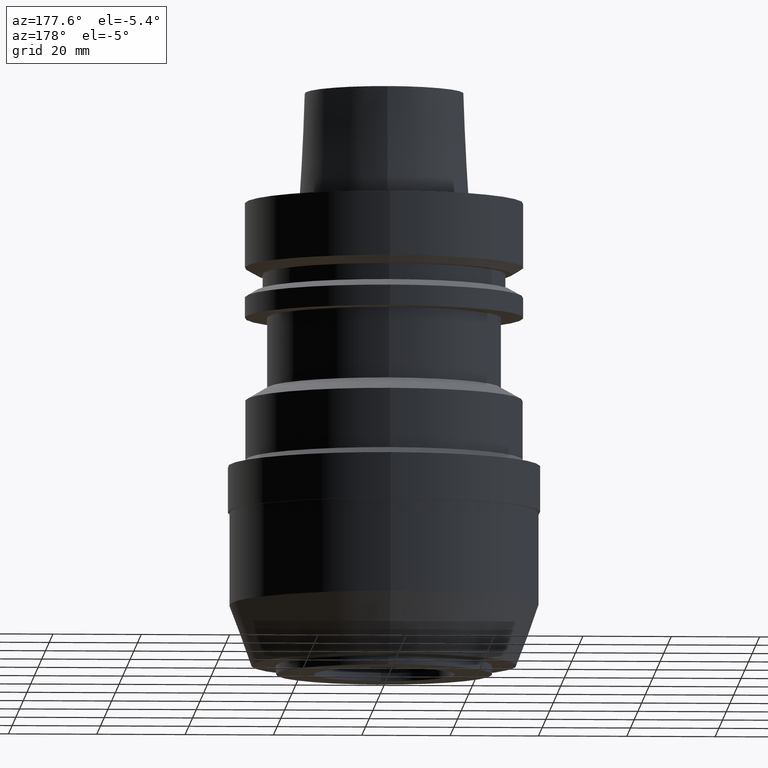
[diagram: clean part render]
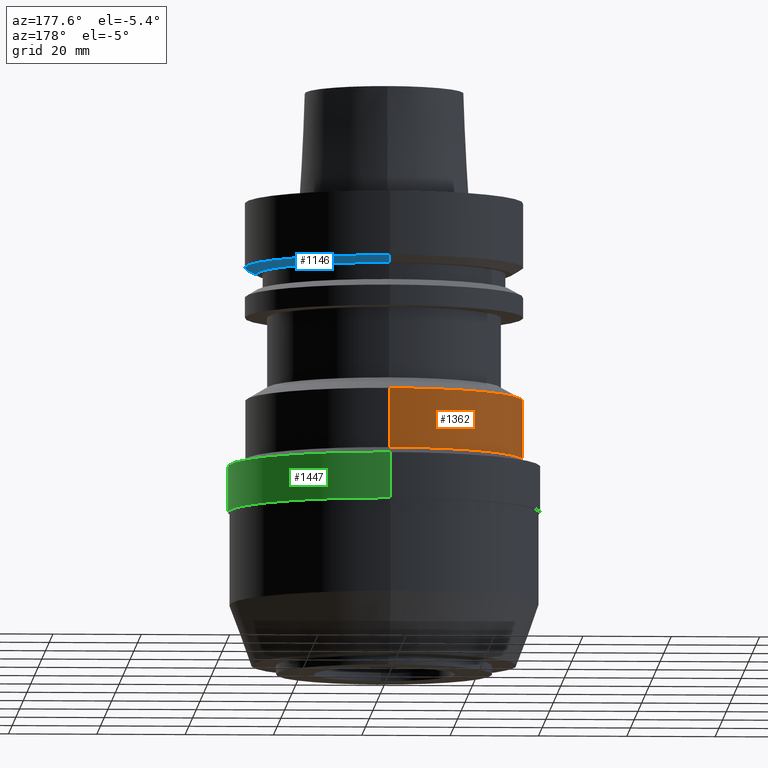
[diagram: same view with three faces highlighted in distinct colors, each labeled with its STEP entity id]
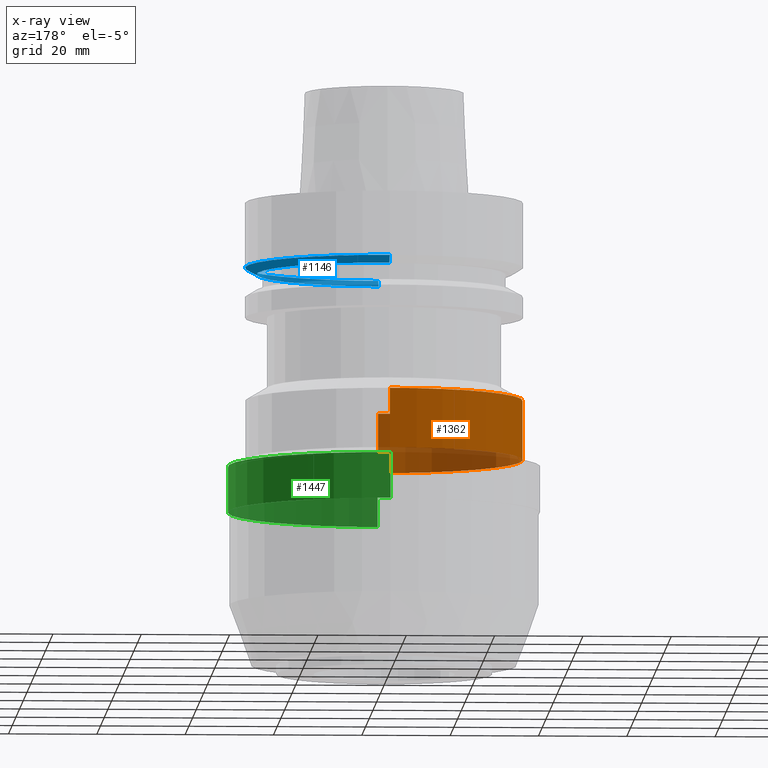
[diagram: x-ray of the same camera — body ghosted, the three highlighted faces saturated]
A machine part, auxiliary view with three faces highlighted in distinct colors.
The next image is the same camera in x-ray (body ghosted, the three faces saturated) — at least one of them is partly hidden behind the body in this view.
Their STEP definitions:

[orange] entity #1362 — the highlighted cylindrical surface (partial cylindrical patch) has radius 31.4 mm, axis along (0, 0, 1).
#346=CARTESIAN_POINT('',(0.E0,0.E0,-4.482901631903E1));
#347=DIRECTION('',(0.E0,0.E0,-1.E0));
#348=DIRECTION('',(0.E0,-1.E0,0.E0));
#349=AXIS2_PLACEMENT_3D('',#346,#347,#348);
#354=DIRECTION('',(0.E0,8.755863486256E-14,-1.E0));
#355=VECTOR('',#354,1.347098368097E1);
#356=CARTESIAN_POINT('',(0.E0,-3.14E1,-4.482901631903E1));
#357=LINE('',#356,#355);
#361=DIRECTION('',(0.E0,-8.755863486256E-14,-1.E0));
#362=VECTOR('',#361,1.347098368097E1);
#363=CARTESIAN_POINT('',(0.E0,3.14E1,-4.482901631903E1));
#364=LINE('',#363,#362);
#383=CARTESIAN_POINT('',(0.E0,0.E0,-5.83E1));
#384=DIRECTION('',(0.E0,0.E0,1.E0));
#385=DIRECTION('',(0.E0,1.E0,0.E0));
#386=AXIS2_PLACEMENT_3D('',#383,#384,#385);
#954=CARTESIAN_POINT('',(0.E0,3.14E1,-4.482901631903E1));
#955=VERTEX_POINT('',#954);
#956=CARTESIAN_POINT('',(0.E0,-3.14E1,-4.482901631903E1));
#957=VERTEX_POINT('',#956);
#958=CARTESIAN_POINT('',(0.E0,3.14E1,-5.83E1));
#959=VERTEX_POINT('',#958);
#960=CARTESIAN_POINT('',(0.E0,-3.14E1,-5.83E1));
#961=VERTEX_POINT('',#960);
#1348=CARTESIAN_POINT('',(0.E0,0.E0,-1.136E2));
#1349=DIRECTION('',(0.E0,0.E0,1.E0));
#1350=DIRECTION('',(0.E0,1.E0,0.E0));
#1351=AXIS2_PLACEMENT_3D('',#1348,#1349,#1350);
#1352=CYLINDRICAL_SURFACE('',#1351,3.14E1);
#1354=ORIENTED_EDGE('',*,*,#1353,.F.);
#1355=ORIENTED_EDGE('',*,*,#1343,.F.);
#1357=ORIENTED_EDGE('',*,*,#1356,.T.);
#1359=ORIENTED_EDGE('',*,*,#1358,.F.);
#1360=EDGE_LOOP('',(#1354,#1355,#1357,#1359));
#1361=FACE_OUTER_BOUND('',#1360,.F.);
#350=CIRCLE('',#349,3.14E1);
#387=CIRCLE('',#386,3.14E1);
#1343=EDGE_CURVE('',#957,#955,#350,.T.);
#1353=EDGE_CURVE('',#955,#959,#364,.T.);
#1356=EDGE_CURVE('',#957,#961,#357,.T.);
#1358=EDGE_CURVE('',#959,#961,#387,.T.);
#1362=ADVANCED_FACE('',(#1361),#1352,.T.);

[blue] entity #1146 — the highlighted conical surface has half-angle 60 deg.
#110=DIRECTION('',(0.E0,-8.660254037844E-1,-5.000000000001E-1));
#111=VECTOR('',#110,3.004998149520E0);
#112=CARTESIAN_POINT('',(0.E0,3.15E1,-1.462250092524E1));
#113=LINE('',#112,#111);
#117=CARTESIAN_POINT('',(0.E0,0.E0,-1.462250092524E1));
#118=DIRECTION('',(0.E0,0.E0,1.E0));
#119=DIRECTION('',(0.E0,-1.E0,0.E0));
#120=AXIS2_PLACEMENT_3D('',#117,#118,#119);
#133=DIRECTION('',(0.E0,8.660254037844E-1,-5.000000000001E-1));
#134=VECTOR('',#133,3.004998149520E0);
#135=CARTESIAN_POINT('',(0.E0,-3.15E1,-1.462250092524E1));
#136=LINE('',#135,#134);
#140=CARTESIAN_POINT('',(0.E0,0.E0,-1.6125E1));
#141=DIRECTION('',(0.E0,0.E0,1.E0));
#142=DIRECTION('',(0.E0,-1.E0,0.E0));
#143=AXIS2_PLACEMENT_3D('',#140,#141,#142);
#918=CARTESIAN_POINT('',(0.E0,3.15E1,-1.462250092524E1));
#919=VERTEX_POINT('',#918);
#920=CARTESIAN_POINT('',(0.E0,-3.15E1,-1.462250092524E1));
#921=VERTEX_POINT('',#920);
#922=CARTESIAN_POINT('',(0.E0,2.889759526419E1,-1.6125E1));
#923=VERTEX_POINT('',#922);
#924=CARTESIAN_POINT('',(0.E0,-2.889759526419E1,-1.6125E1));
#925=VERTEX_POINT('',#924);
#1132=CARTESIAN_POINT('',(0.E0,0.E0,-1.537375046262E1));
#1133=DIRECTION('',(0.E0,0.E0,1.E0));
#1134=DIRECTION('',(0.E0,1.E0,0.E0));
#1135=AXIS2_PLACEMENT_3D('',#1132,#1133,#1134);
#1136=CONICAL_SURFACE('',#1135,3.019879763210E1,6.E1);
#1138=ORIENTED_EDGE('',*,*,#1137,.T.);
#1140=ORIENTED_EDGE('',*,*,#1139,.F.);
#1142=ORIENTED_EDGE('',*,*,#1141,.F.);
#1143=ORIENTED_EDGE('',*,*,#1125,.T.);
#1144=EDGE_LOOP('',(#1138,#1140,#1142,#1143));
#1145=FACE_OUTER_BOUND('',#1144,.F.);
#121=CIRCLE('',#120,3.15E1);
#144=CIRCLE('',#143,2.889759526419E1);
#1125=EDGE_CURVE('',#921,#919,#121,.T.);
#1137=EDGE_CURVE('',#919,#923,#113,.T.);
#1139=EDGE_CURVE('',#925,#923,#144,.T.);
#1141=EDGE_CURVE('',#921,#925,#136,.T.);
#1146=ADVANCED_FACE('',(#1145),#1136,.T.);

[green] entity #1447 — the highlighted cylindrical surface (partial cylindrical patch) has radius 35.35 mm, axis along (0, 0, 1).
#406=CARTESIAN_POINT('',(0.E0,0.E0,-5.98E1));
#407=DIRECTION('',(0.E0,0.E0,-1.E0));
#408=DIRECTION('',(0.E0,1.E0,0.E0));
#409=AXIS2_PLACEMENT_3D('',#406,#407,#408);
#430=DIRECTION('',(0.E0,0.E0,-1.E0));
#431=VECTOR('',#430,1.04E1);
#432=CARTESIAN_POINT('',(0.E0,-3.535E1,-5.98E1));
#433=LINE('',#432,#431);
#437=DIRECTION('',(0.E0,0.E0,-1.E0));
#438=VECTOR('',#437,1.04E1);
#439=CARTESIAN_POINT('',(0.E0,3.535E1,-5.98E1));
#440=LINE('',#439,#438);
#444=CARTESIAN_POINT('',(0.E0,0.E0,-7.02E1));
#445=DIRECTION('',(0.E0,0.E0,1.E0));
#446=DIRECTION('',(0.E0,-1.E0,0.E0));
#447=AXIS2_PLACEMENT_3D('',#444,#445,#446);
#966=CARTESIAN_POINT('',(0.E0,-3.535E1,-5.98E1));
#967=CARTESIAN_POINT('',(0.E0,3.535E1,-5.98E1));
#968=VERTEX_POINT('',#966);
#969=VERTEX_POINT('',#967);
#970=CARTESIAN_POINT('',(0.E0,3.535E1,-7.02E1));
#971=VERTEX_POINT('',#970);
#972=CARTESIAN_POINT('',(0.E0,-3.535E1,-7.02E1));
#973=VERTEX_POINT('',#972);
#1435=CARTESIAN_POINT('',(0.E0,0.E0,-1.136E2));
#1436=DIRECTION('',(0.E0,0.E0,1.E0));
#1437=DIRECTION('',(0.E0,1.E0,0.E0));
#1438=AXIS2_PLACEMENT_3D('',#1435,#1436,#1437);
#1439=CYLINDRICAL_SURFACE('',#1438,3.535E1);
#1440=ORIENTED_EDGE('',*,*,#1425,.T.);
#1442=ORIENTED_EDGE('',*,*,#1441,.F.);
#1443=ORIENTED_EDGE('',*,*,#1428,.F.);
#1444=ORIENTED_EDGE('',*,*,#1411,.F.);
#1445=EDGE_LOOP('',(#1440,#1442,#1443,#1444));
#1446=FACE_OUTER_BOUND('',#1445,.F.);
#410=CIRCLE('',#409,3.535E1);
#448=CIRCLE('',#447,3.535E1);
#1411=EDGE_CURVE('',#969,#968,#410,.T.);
#1425=EDGE_CURVE('',#969,#971,#440,.T.);
#1428=EDGE_CURVE('',#968,#973,#433,.T.);
#1441=EDGE_CURVE('',#973,#971,#448,.T.);
#1447=ADVANCED_FACE('',(#1446),#1439,.T.);